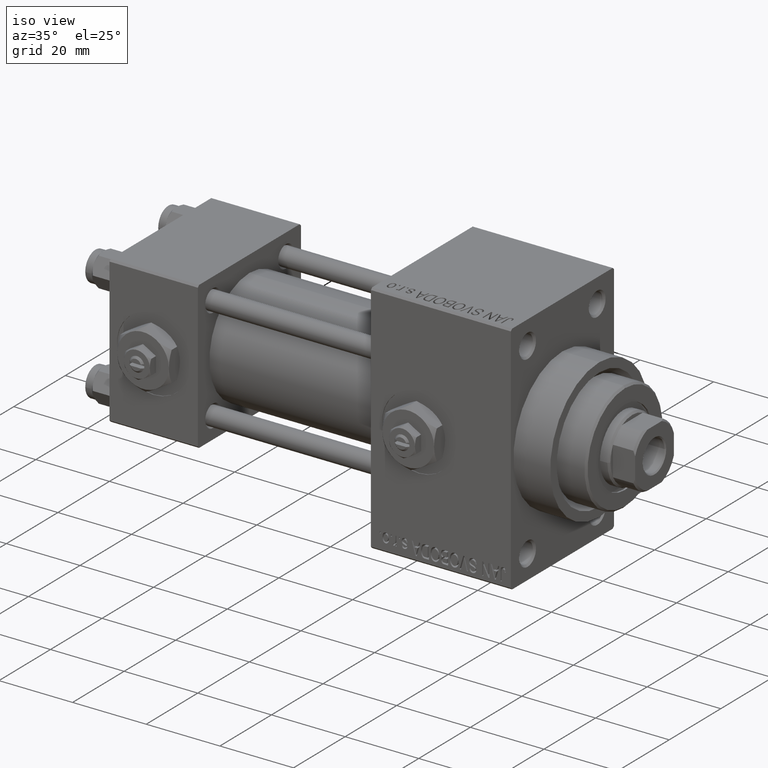
[diagram: clean part render]
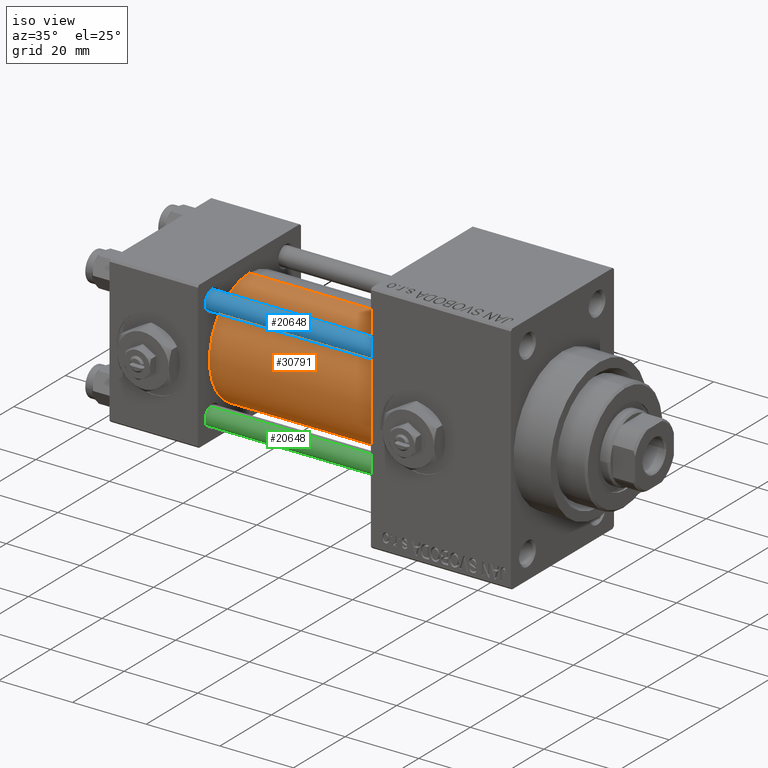
[diagram: same view with three faces highlighted in distinct colors, each labeled with its STEP entity id]
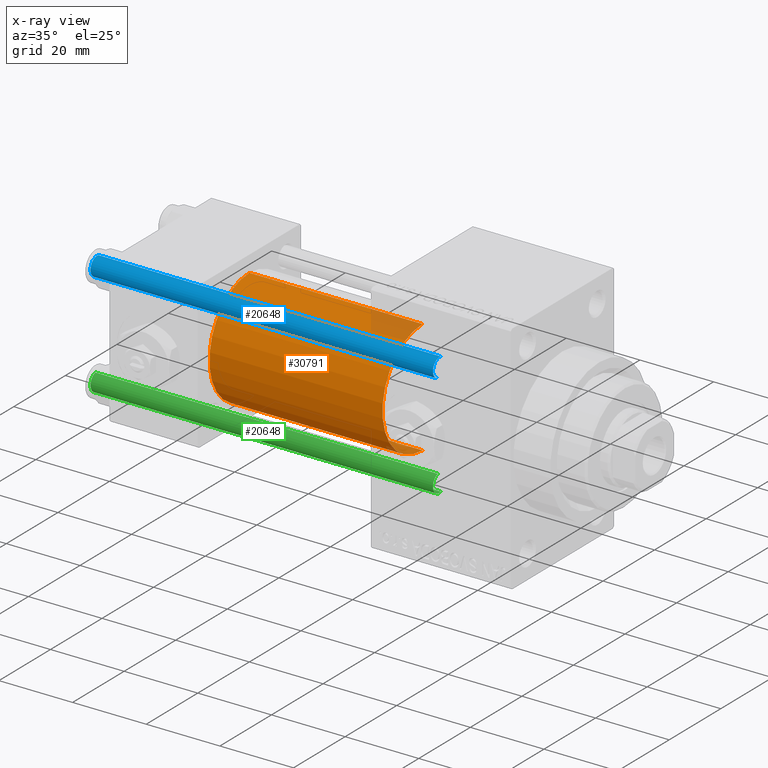
[diagram: x-ray of the same camera — body ghosted, the three highlighted faces saturated]
A machine part, iso view with three faces highlighted in distinct colors.
The next image is the same camera in x-ray (body ghosted, the three faces saturated) — at least one of them is partly hidden behind the body in this view.
Their STEP definitions:

[orange] entity #30791 — the highlighted cylindrical surface (partial cylindrical patch) has radius 15.5 mm, axis along (-1, -0, -0).
#633 = EDGE_CURVE ( 'NONE', #43887, #6118, #45198, .T. ) ;
#4648 = EDGE_CURVE ( 'NONE', #5737, #13221, #16831, .T. ) ;
#5737 = VERTEX_POINT ( 'NONE', #45206 ) ;
#6000 = AXIS2_PLACEMENT_3D ( 'NONE', #36978, #36489, #6746 ) ;
#6118 = VERTEX_POINT ( 'NONE', #24061 ) ;
#6491 = DIRECTION ( 'NONE',  ( 1.000000000000000000, 0.000000000000000000, 0.000000000000000000 ) ) ;
#6663 = EDGE_CURVE ( 'NONE', #43887, #5737, #12366, .T. ) ;
#6746 = DIRECTION ( 'NONE',  ( 0.000000000000000000, 0.000000000000000000, 1.000000000000000000 ) ) ;
#8835 = CARTESIAN_POINT ( 'NONE',  ( 71.00000000000001421, -2.602085213965210642E-15, 15.50000000000000000 ) ) ;
#9207 = ORIENTED_EDGE ( 'NONE', *, *, #25278, .F. ) ;
#9615 = ORIENTED_EDGE ( 'NONE', *, *, #4648, .T. ) ;
#12366 = LINE ( 'NONE', #38879, #41304 ) ;
#13221 = VERTEX_POINT ( 'NONE', #25820 ) ;
#13929 = FACE_OUTER_BOUND ( 'NONE', #33702, .T. ) ;
#16323 = DIRECTION ( 'NONE',  ( -1.000000000000000000, -0.000000000000000000, -0.000000000000000000 ) ) ;
#16831 = CIRCLE ( 'NONE', #31751, 15.50000000000000000 ) ;
#16861 = VECTOR ( 'NONE', #35027, 1000.000000000000000 ) ;
#19916 = LINE ( 'NONE', #43179, #16861 ) ;
#21621 = CYLINDRICAL_SURFACE ( 'NONE', #6000, 15.50000000000000000 ) ;
#24061 = CARTESIAN_POINT ( 'NONE',  ( 71.00000000000001421, -7.038826752868131828E-16, -15.50000000000000000 ) ) ;
#25278 = EDGE_CURVE ( 'NONE', #6118, #13221, #19916, .T. ) ;
#25820 = CARTESIAN_POINT ( 'NONE',  ( 24.00000000000000000, -7.038826752868131828E-16, -15.50000000000000000 ) ) ;
#25995 = ORIENTED_EDGE ( 'NONE', *, *, #6663, .T. ) ;
#30177 = AXIS2_PLACEMENT_3D ( 'NONE', #40199, #6491, #36718 ) ;
#30791 = ADVANCED_FACE ( 'NONE', ( #13929 ), #21621, .T. ) ;
#31751 = AXIS2_PLACEMENT_3D ( 'NONE', #43245, #31851, #39525 ) ;
#31851 = DIRECTION ( 'NONE',  ( 1.000000000000000000, 0.000000000000000000, 0.000000000000000000 ) ) ;
#33702 = EDGE_LOOP ( 'NONE', ( #9207, #36383, #25995, #9615 ) ) ;
#35027 = DIRECTION ( 'NONE',  ( -1.000000000000000000, -0.000000000000000000, -0.000000000000000000 ) ) ;
#36383 = ORIENTED_EDGE ( 'NONE', *, *, #633, .F. ) ;
#36489 = DIRECTION ( 'NONE',  ( -1.000000000000000000, -0.000000000000000000, -0.000000000000000000 ) ) ;
#36718 = DIRECTION ( 'NONE',  ( 0.000000000000000000, 0.000000000000000000, -1.000000000000000000 ) ) ;
#36978 = CARTESIAN_POINT ( 'NONE',  ( 71.00000000000001421, -2.602085213965210642E-15, 0.000000000000000000 ) ) ;
#38879 = CARTESIAN_POINT ( 'NONE',  ( 71.00000000000001421, -2.602085213965210642E-15, 15.50000000000000000 ) ) ;
#39525 = DIRECTION ( 'NONE',  ( 0.000000000000000000, 0.000000000000000000, 1.000000000000000000 ) ) ;
#40199 = CARTESIAN_POINT ( 'NONE',  ( 71.00000000000001421, -2.602085213965210642E-15, 0.000000000000000000 ) ) ;
#41304 = VECTOR ( 'NONE', #16323, 1000.000000000000000 ) ;
#43179 = CARTESIAN_POINT ( 'NONE',  ( 71.00000000000001421, -7.038826752868131828E-16, -15.50000000000000000 ) ) ;
#43245 = CARTESIAN_POINT ( 'NONE',  ( 24.00000000000000000, -2.602085213965210642E-15, 0.000000000000000000 ) ) ;
#43887 = VERTEX_POINT ( 'NONE', #8835 ) ;
#45198 = CIRCLE ( 'NONE', #30177, 15.50000000000000000 ) ;
#45206 = CARTESIAN_POINT ( 'NONE',  ( 24.00000000000000000, -2.602085213965210642E-15, 15.50000000000000000 ) ) ;

[blue] entity #20648 — the highlighted cylindrical surface (edge-blend (fillet) strip) has radius 2.5 mm, axis along (1, 0, 0).
#558 = CYLINDRICAL_SURFACE ( 'NONE', #1835, 2.500000000000000000 ) ;
#1835 = AXIS2_PLACEMENT_3D ( 'NONE', #23843, #45912, #38474 ) ;
#2219 = VERTEX_POINT ( 'NONE', #35120 ) ;
#3294 = CARTESIAN_POINT ( 'NONE',  ( 0.000000000000000000, 0.000000000000000000, 93.50000000000001421 ) ) ;
#4051 = EDGE_CURVE ( 'NONE', #30284, #8171, #31973, .T. ) ;
#5146 = ORIENTED_EDGE ( 'NONE', *, *, #40750, .T. ) ;
#8171 = VERTEX_POINT ( 'NONE', #23890 ) ;
#8541 = CARTESIAN_POINT ( 'NONE',  ( 0.000000000000000000, 0.000000000000000000, 0.5000000000000004441 ) ) ;
#9618 = CARTESIAN_POINT ( 'NONE',  ( -2.500000000000000000, 0.000000000000000000, 93.50000000000001421 ) ) ;
#11980 = VECTOR ( 'NONE', #28263, 1000.000000000000000 ) ;
#13136 = CARTESIAN_POINT ( 'NONE',  ( 2.500000000000000000, 3.061616997868383141E-16, 94.00000000000000000 ) ) ;
#15509 = AXIS2_PLACEMENT_3D ( 'NONE', #3294, #34024, #33528 ) ;
#19552 = EDGE_CURVE ( 'NONE', #35909, #2219, #41382, .T. ) ;
#20307 = AXIS2_PLACEMENT_3D ( 'NONE', #8541, #23654, #39008 ) ;
#20648 = ADVANCED_FACE ( 'NONE', ( #35006 ), #558, .T. ) ;
#22306 = VECTOR ( 'NONE', #37172, 1000.000000000000000 ) ;
#23654 = DIRECTION ( 'NONE',  ( -0.000000000000000000, -0.000000000000000000, 1.000000000000000000 ) ) ;
#23843 = CARTESIAN_POINT ( 'NONE',  ( 0.000000000000000000, 0.000000000000000000, 94.00000000000000000 ) ) ;
#23890 = CARTESIAN_POINT ( 'NONE',  ( 2.500000000000000000, 3.061616997868383141E-16, 0.5000000000000004441 ) ) ;
#24585 = ORIENTED_EDGE ( 'NONE', *, *, #39784, .T. ) ;
#25772 = CARTESIAN_POINT ( 'NONE',  ( -2.500000000000000000, 0.000000000000000000, 94.00000000000000000 ) ) ;
#25804 = CIRCLE ( 'NONE', #15509, 2.500000000000000000 ) ;
#26685 = CARTESIAN_POINT ( 'NONE',  ( 2.500000000000000000, 3.061616997868383141E-16, 93.50000000000001421 ) ) ;
#28263 = DIRECTION ( 'NONE',  ( -0.000000000000000000, -0.000000000000000000, -1.000000000000000000 ) ) ;
#30284 = VERTEX_POINT ( 'NONE', #26685 ) ;
#31973 = LINE ( 'NONE', #13136, #11980 ) ;
#33528 = DIRECTION ( 'NONE',  ( 1.000000000000000000, 0.000000000000000000, 0.000000000000000000 ) ) ;
#34024 = DIRECTION ( 'NONE',  ( 0.000000000000000000, 0.000000000000000000, -1.000000000000000000 ) ) ;
#35006 = FACE_OUTER_BOUND ( 'NONE', #44963, .T. ) ;
#35120 = CARTESIAN_POINT ( 'NONE',  ( -2.500000000000000000, 0.000000000000000000, 0.5000000000000004441 ) ) ;
#35254 = ORIENTED_EDGE ( 'NONE', *, *, #19552, .F. ) ;
#35909 = VERTEX_POINT ( 'NONE', #9618 ) ;
#37172 = DIRECTION ( 'NONE',  ( -0.000000000000000000, -0.000000000000000000, -1.000000000000000000 ) ) ;
#38474 = DIRECTION ( 'NONE',  ( -1.000000000000000000, 0.000000000000000000, 0.000000000000000000 ) ) ;
#38508 = CIRCLE ( 'NONE', #20307, 2.500000000000000000 ) ;
#39008 = DIRECTION ( 'NONE',  ( 1.000000000000000000, 0.000000000000000000, 0.000000000000000000 ) ) ;
#39784 = EDGE_CURVE ( 'NONE', #35909, #30284, #25804, .T. ) ;
#40750 = EDGE_CURVE ( 'NONE', #8171, #2219, #38508, .T. ) ;
#41382 = LINE ( 'NONE', #25772, #22306 ) ;
#43439 = ORIENTED_EDGE ( 'NONE', *, *, #4051, .T. ) ;
#44963 = EDGE_LOOP ( 'NONE', ( #24585, #43439, #5146, #35254 ) ) ;
#45912 = DIRECTION ( 'NONE',  ( -0.000000000000000000, -0.000000000000000000, -1.000000000000000000 ) ) ;

[green] entity #20648 — the highlighted cylindrical surface (edge-blend (fillet) strip) has radius 2.5 mm, axis along (-1, 0, 0).
#558 = CYLINDRICAL_SURFACE ( 'NONE', #1835, 2.500000000000000000 ) ;
#1835 = AXIS2_PLACEMENT_3D ( 'NONE', #23843, #45912, #38474 ) ;
#2219 = VERTEX_POINT ( 'NONE', #35120 ) ;
#3294 = CARTESIAN_POINT ( 'NONE',  ( 0.000000000000000000, 0.000000000000000000, 93.50000000000001421 ) ) ;
#4051 = EDGE_CURVE ( 'NONE', #30284, #8171, #31973, .T. ) ;
#5146 = ORIENTED_EDGE ( 'NONE', *, *, #40750, .T. ) ;
#8171 = VERTEX_POINT ( 'NONE', #23890 ) ;
#8541 = CARTESIAN_POINT ( 'NONE',  ( 0.000000000000000000, 0.000000000000000000, 0.5000000000000004441 ) ) ;
#9618 = CARTESIAN_POINT ( 'NONE',  ( -2.500000000000000000, 0.000000000000000000, 93.50000000000001421 ) ) ;
#11980 = VECTOR ( 'NONE', #28263, 1000.000000000000000 ) ;
#13136 = CARTESIAN_POINT ( 'NONE',  ( 2.500000000000000000, 3.061616997868383141E-16, 94.00000000000000000 ) ) ;
#15509 = AXIS2_PLACEMENT_3D ( 'NONE', #3294, #34024, #33528 ) ;
#19552 = EDGE_CURVE ( 'NONE', #35909, #2219, #41382, .T. ) ;
#20307 = AXIS2_PLACEMENT_3D ( 'NONE', #8541, #23654, #39008 ) ;
#20648 = ADVANCED_FACE ( 'NONE', ( #35006 ), #558, .T. ) ;
#22306 = VECTOR ( 'NONE', #37172, 1000.000000000000000 ) ;
#23654 = DIRECTION ( 'NONE',  ( -0.000000000000000000, -0.000000000000000000, 1.000000000000000000 ) ) ;
#23843 = CARTESIAN_POINT ( 'NONE',  ( 0.000000000000000000, 0.000000000000000000, 94.00000000000000000 ) ) ;
#23890 = CARTESIAN_POINT ( 'NONE',  ( 2.500000000000000000, 3.061616997868383141E-16, 0.5000000000000004441 ) ) ;
#24585 = ORIENTED_EDGE ( 'NONE', *, *, #39784, .T. ) ;
#25772 = CARTESIAN_POINT ( 'NONE',  ( -2.500000000000000000, 0.000000000000000000, 94.00000000000000000 ) ) ;
#25804 = CIRCLE ( 'NONE', #15509, 2.500000000000000000 ) ;
#26685 = CARTESIAN_POINT ( 'NONE',  ( 2.500000000000000000, 3.061616997868383141E-16, 93.50000000000001421 ) ) ;
#28263 = DIRECTION ( 'NONE',  ( -0.000000000000000000, -0.000000000000000000, -1.000000000000000000 ) ) ;
#30284 = VERTEX_POINT ( 'NONE', #26685 ) ;
#31973 = LINE ( 'NONE', #13136, #11980 ) ;
#33528 = DIRECTION ( 'NONE',  ( 1.000000000000000000, 0.000000000000000000, 0.000000000000000000 ) ) ;
#34024 = DIRECTION ( 'NONE',  ( 0.000000000000000000, 0.000000000000000000, -1.000000000000000000 ) ) ;
#35006 = FACE_OUTER_BOUND ( 'NONE', #44963, .T. ) ;
#35120 = CARTESIAN_POINT ( 'NONE',  ( -2.500000000000000000, 0.000000000000000000, 0.5000000000000004441 ) ) ;
#35254 = ORIENTED_EDGE ( 'NONE', *, *, #19552, .F. ) ;
#35909 = VERTEX_POINT ( 'NONE', #9618 ) ;
#37172 = DIRECTION ( 'NONE',  ( -0.000000000000000000, -0.000000000000000000, -1.000000000000000000 ) ) ;
#38474 = DIRECTION ( 'NONE',  ( -1.000000000000000000, 0.000000000000000000, 0.000000000000000000 ) ) ;
#38508 = CIRCLE ( 'NONE', #20307, 2.500000000000000000 ) ;
#39008 = DIRECTION ( 'NONE',  ( 1.000000000000000000, 0.000000000000000000, 0.000000000000000000 ) ) ;
#39784 = EDGE_CURVE ( 'NONE', #35909, #30284, #25804, .T. ) ;
#40750 = EDGE_CURVE ( 'NONE', #8171, #2219, #38508, .T. ) ;
#41382 = LINE ( 'NONE', #25772, #22306 ) ;
#43439 = ORIENTED_EDGE ( 'NONE', *, *, #4051, .T. ) ;
#44963 = EDGE_LOOP ( 'NONE', ( #24585, #43439, #5146, #35254 ) ) ;
#45912 = DIRECTION ( 'NONE',  ( -0.000000000000000000, -0.000000000000000000, -1.000000000000000000 ) ) ;